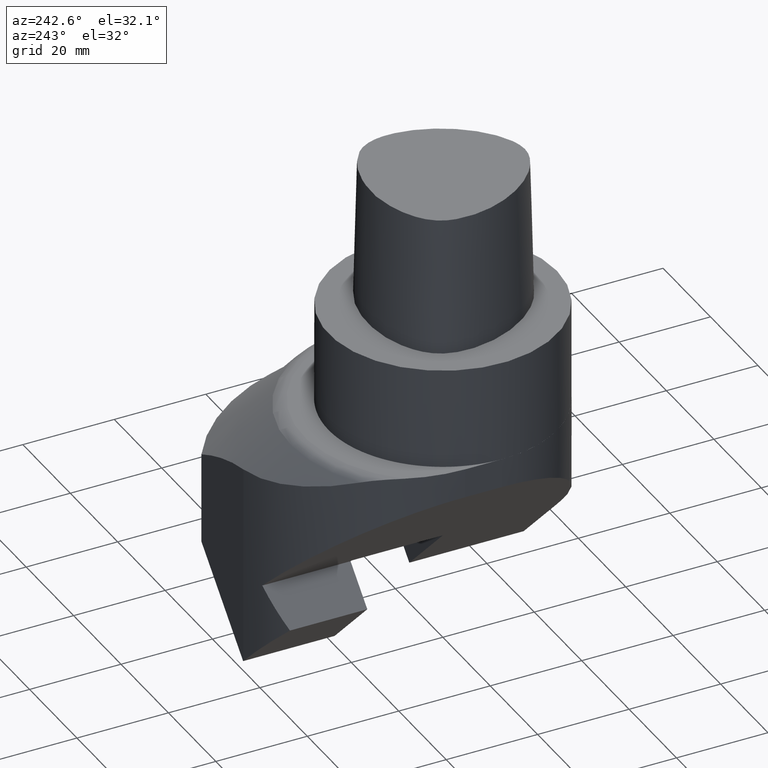
[diagram: clean part render]
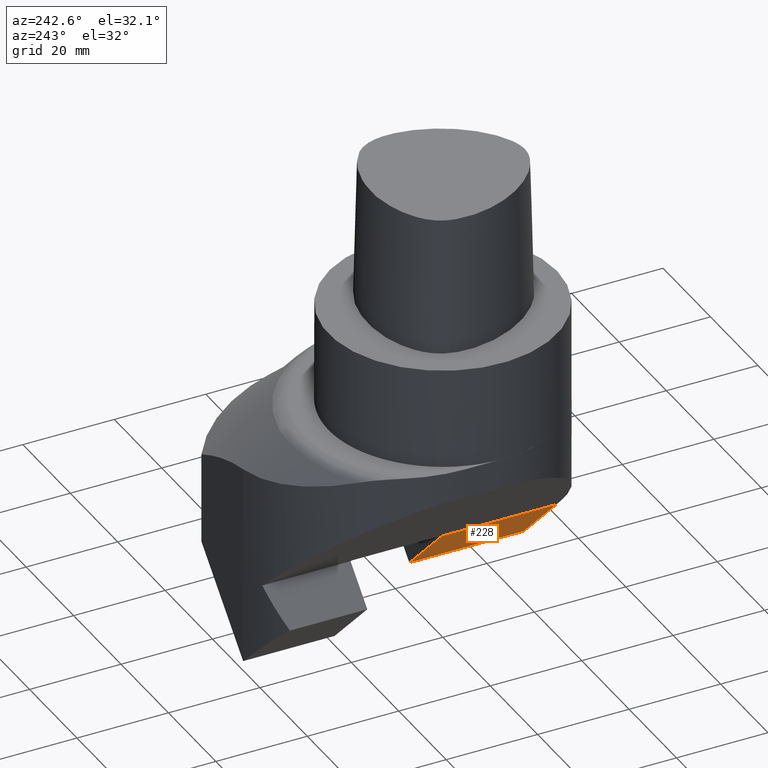
[diagram: same view with one face highlighted and labeled with its STEP entity id]
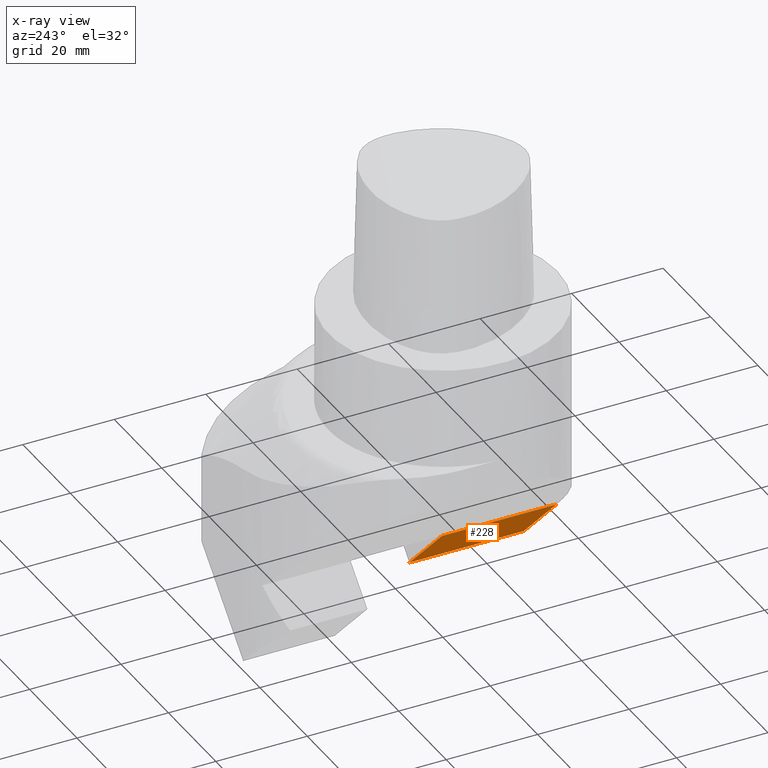
[diagram: x-ray of the same camera — body ghosted, the highlighted face saturated]
A machine part, auxiliary view. The second image highlights one B-rep face of the part: STEP entity #228.
The next image is the same camera in x-ray: the body ghosted, the highlighted face saturated — about 0% of this face is hidden behind the body in this view.
In plain terms, the highlighted planar face has unit normal (0.7071, 0, 0.7071).
Its self-contained STEP definition (entity closure, byte-faithful):
#171=EDGE_CURVE('240[2]',#447,#448,#449,.T.);
#217=EDGE_CURVE('240[2]',#511,#379,#512,.T.);
#228=ADVANCED_FACE('240[2]',(#524),#525,.F.);
#293=EDGE_CURVE('240[2]',#511,#447,#607,.T.);
#328=EDGE_CURVE('240[2]',#448,#379,#645,.T.);
#379=VERTEX_POINT('',#732);
#447=VERTEX_POINT('',#1218);
#448=VERTEX_POINT('',#1219);
#449=LINE('',#1220,#1221);
#511=VERTEX_POINT('',#1353);
#512=LINE('',#1354,#1355);
#524=FACE_OUTER_BOUND('',#1422,.T.);
#525=PLANE('',#1423);
#607=LINE('',#1568,#1569);
#645=LINE('',#1655,#1656);
#732=CARTESIAN_POINT('',(0.353553367078787,-1.72809948045786E-014,-53.7261367498307));
#1218=CARTESIAN_POINT('',(14.1421356114783,-25.0000000000339,-67.5147189763034));
#1219=CARTESIAN_POINT('',(14.1421356114783,-2.1316282072803E-014,-67.5147189763034));
#1220=CARTESIAN_POINT('',(14.1421356114783,-14.4796333777888,-67.5147189763034));
#1221=VECTOR('',#1854,1.0);
#1353=CARTESIAN_POINT('',(0.353553367078784,-25.0000000000588,-53.7261367498307));
#1354=CARTESIAN_POINT('',(0.353553367078787,-1.72809948045786E-014,-53.7261367498307));
#1355=VECTOR('',#1925,10.0);
#1422=EDGE_LOOP('',(#1932,#1933,#1934,#1935));
#1423=AXIS2_PLACEMENT_3D('',#1936,#1937,#1938);
#1568=CARTESIAN_POINT('',(14.0747920216915,-25.000000000034,-67.4473753866042));
#1569=VECTOR('',#2054,10.0);
#1655=CARTESIAN_POINT('',(7.24784448698022,-1.89696091139564E-014,-60.6204278607687));
#1656=VECTOR('',#2096,10.0);
#1854=DIRECTION('',(1.22464679914736E-016,1.0,-1.22464679914736E-016));
#1925=DIRECTION('',(1.22464679914735E-016,1.0,-1.22464679914735E-016));
#1932=ORIENTED_EDGE('',*,*,#217,.T.);
#1933=ORIENTED_EDGE('',*,*,#328,.F.);
#1934=ORIENTED_EDGE('',*,*,#171,.F.);
#1935=ORIENTED_EDGE('',*,*,#293,.F.);
#1936=CARTESIAN_POINT('',(0.353553367078783,-28.9592667555775,-53.7261367498307));
#1937=DIRECTION('',(0.707106780726887,1.12584350904188E-025,0.707106781646208));
#1938=DIRECTION('',(1.59218316063175E-025,-1.0,0.0));
#2054=DIRECTION('',(0.707106781646208,1.27811529336539E-012,-0.707106780726887));
#2096=DIRECTION('',(-0.707106781646208,1.73191211247099E-016,0.707106780726887));